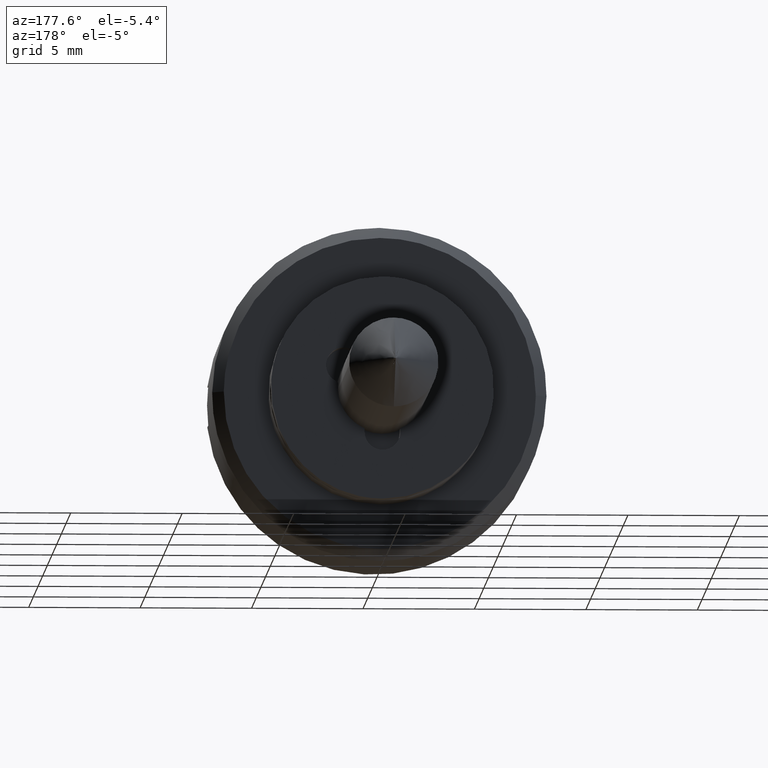
[diagram: clean part render]
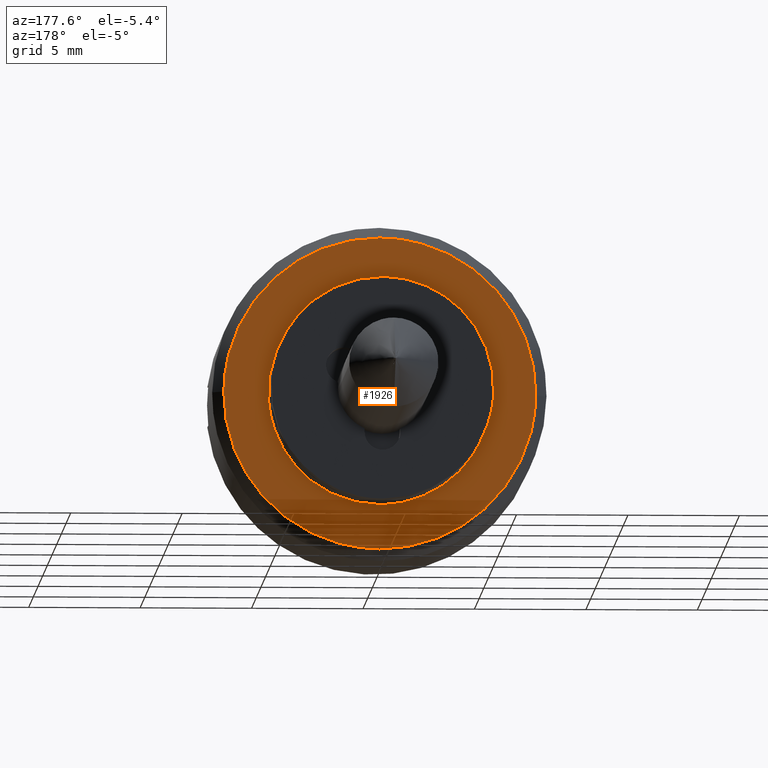
[diagram: same view with one face highlighted and labeled with its STEP entity id]
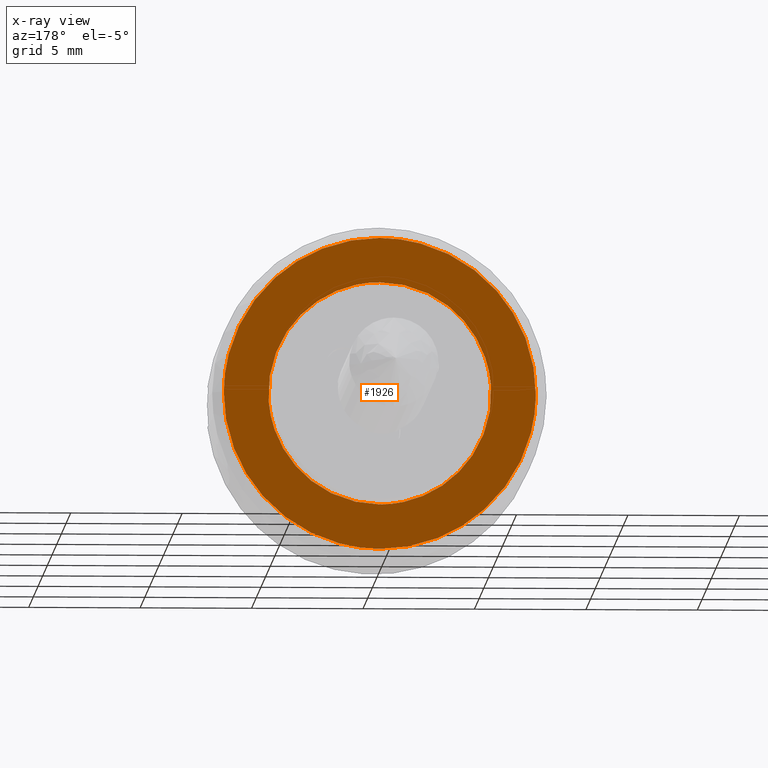
[diagram: x-ray of the same camera — body ghosted, the highlighted face saturated]
A machine part, auxiliary view. The second image highlights one B-rep face of the part: STEP entity #1926.
The next image is the same camera in x-ray: the body ghosted, the highlighted face saturated — about 0% of this face is hidden behind the body in this view.
In plain terms, the highlighted face is a freeform B-spline surface patch.
Its self-contained STEP definition (entity closure, byte-faithful):
#1058=CARTESIAN_POINT('',(-2.000000000003316,-6.999733461452301,0.061085748513027));
#1059=VERTEX_POINT('',#1058);
#1065=CARTESIAN_POINT('',(-2.0,0.0,7.0));
#1066=VERTEX_POINT('',#1065);
#1067=CARTESIAN_POINT('',(-2.0,0.0,7.0));
#1068=CARTESIAN_POINT('',(-2.000000000000000,-6.939178474116506,6.999999999999999));
#1069=CARTESIAN_POINT('',(-2.000000000003316,-6.999733461452301,0.061085748513027));
#1077=(BOUNDED_CURVE()B_SPLINE_CURVE(2,(#1067,#1068,#1069),.UNSPECIFIED.,.F.,.U.)B_SPLINE_CURVE_WITH_KNOTS((3,3),(0.500000000000000,0.748460105663786),.UNSPECIFIED.)CURVE()GEOMETRIC_REPRESENTATION_ITEM()RATIONAL_B_SPLINE_CURVE((1.0,0.708910879621613,0.996414028097566))REPRESENTATION_ITEM(''));
#1078=EDGE_CURVE('',#1066,#1059,#1077,.T.);
#1080=CARTESIAN_POINT('',(-2.000000000003316,6.999733461452301,-0.061085748513027));
#1081=VERTEX_POINT('',#1080);
#1082=CARTESIAN_POINT('',(-2.000000000003316,6.999733461452301,-0.061085748513027));
#1083=CARTESIAN_POINT('',(-2.0,7.0,-0.030543455769293));
#1084=CARTESIAN_POINT('',(-2.0,7.0,0.0));
#1085=CARTESIAN_POINT('',(-2.0,6.999999999999999,6.999999999999999));
#1086=CARTESIAN_POINT('',(-2.0,0.0,7.0));
#1094=(BOUNDED_CURVE()B_SPLINE_CURVE(2,(#1082,#1083,#1084,#1085,#1086),.UNSPECIFIED.,.F.,.U.)B_SPLINE_CURVE_WITH_KNOTS((3,2,3),(0.248460105663786,0.250000000000000,0.500000000000000),.UNSPECIFIED.)CURVE()GEOMETRIC_REPRESENTATION_ITEM()RATIONAL_B_SPLINE_CURVE((0.996414028097566,0.998195901564935,1.0,0.707106781186547,1.0))REPRESENTATION_ITEM(''));
#1095=EDGE_CURVE('',#1081,#1066,#1094,.T.);
#1201=CARTESIAN_POINT('',(-2.0,0.0,-7.0));
#1202=VERTEX_POINT('',#1201);
#1203=CARTESIAN_POINT('',(-2.0,0.0,-7.0));
#1204=CARTESIAN_POINT('',(-2.000000000000000,6.939178474116506,-6.999999999999999));
#1205=CARTESIAN_POINT('',(-2.000000000003316,6.999733461452301,-0.061085748513027));
#1213=(BOUNDED_CURVE()B_SPLINE_CURVE(2,(#1203,#1204,#1205),.UNSPECIFIED.,.F.,.U.)B_SPLINE_CURVE_WITH_KNOTS((3,3),(0.0,0.248460105663786),.UNSPECIFIED.)CURVE()GEOMETRIC_REPRESENTATION_ITEM()RATIONAL_B_SPLINE_CURVE((1.0,0.708910879621613,0.996414028097566))REPRESENTATION_ITEM(''));
#1214=EDGE_CURVE('',#1202,#1081,#1213,.T.);
#1216=CARTESIAN_POINT('',(-2.000000000003316,-6.999733461452301,0.061085748513027));
#1217=CARTESIAN_POINT('',(-2.0,-7.0,0.030543455769293));
#1218=CARTESIAN_POINT('',(-2.0,-7.0,0.0));
#1219=CARTESIAN_POINT('',(-2.0,-6.999999999999999,-6.999999999999999));
#1220=CARTESIAN_POINT('',(-2.0,0.0,-7.0));
#1228=(BOUNDED_CURVE()B_SPLINE_CURVE(2,(#1216,#1217,#1218,#1219,#1220),.UNSPECIFIED.,.F.,.U.)B_SPLINE_CURVE_WITH_KNOTS((3,2,3),(0.748460105663786,0.750000000000000,1.0),.UNSPECIFIED.)CURVE()GEOMETRIC_REPRESENTATION_ITEM()RATIONAL_B_SPLINE_CURVE((0.996414028097566,0.998195901564935,1.0,0.707106781186547,1.0))REPRESENTATION_ITEM(''));
#1229=EDGE_CURVE('',#1059,#1202,#1228,.T.);
#1469=CARTESIAN_POINT('',(-2.0,0.0,-5.0));
#1470=VERTEX_POINT('',#1469);
#1471=CARTESIAN_POINT('',(-2.000000000000050,-4.984586927430787,-0.392292190688549));
#1472=VERTEX_POINT('',#1471);
#1473=CARTESIAN_POINT('',(-2.0,0.0,-5.0));
#1474=CARTESIAN_POINT('',(-2.000000000000000,-4.621955516467760,-5.0));
#1475=CARTESIAN_POINT('',(-2.000000000000050,-4.984586927430787,-0.392292190688549));
#1483=(BOUNDED_CURVE()B_SPLINE_CURVE(2,(#1473,#1474,#1475),.UNSPECIFIED.,.F.,.U.)B_SPLINE_CURVE_WITH_KNOTS((3,3),(0.0,0.236331413708403),.UNSPECIFIED.)CURVE()GEOMETRIC_REPRESENTATION_ITEM()RATIONAL_B_SPLINE_CURVE((1.0,0.723120526128849,0.969723592152161))REPRESENTATION_ITEM(''));
#1484=EDGE_CURVE('',#1470,#1472,#1483,.T.);
#1486=CARTESIAN_POINT('',(-2.000000000000050,4.984586927430787,0.392292190688549));
#1487=VERTEX_POINT('',#1486);
#1488=CARTESIAN_POINT('',(-2.000000000000050,4.984586927430787,0.392292190688549));
#1489=CARTESIAN_POINT('',(-2.000000000000000,5.000000000000001,0.196448883433947));
#1490=CARTESIAN_POINT('',(-2.0,5.0,0.0));
#1491=CARTESIAN_POINT('',(-2.000000000000000,5.000000000000001,-5.000000000000001));
#1492=CARTESIAN_POINT('',(-2.0,0.0,-5.0));
#1500=(BOUNDED_CURVE()B_SPLINE_CURVE(2,(#1488,#1489,#1490,#1491,#1492),.UNSPECIFIED.,.F.,.U.)B_SPLINE_CURVE_WITH_KNOTS((3,2,3),(0.736331413708403,0.750000000000000,1.0),.UNSPECIFIED.)CURVE()GEOMETRIC_REPRESENTATION_ITEM()RATIONAL_B_SPLINE_CURVE((0.969723592152161,0.983986255057699,1.0,0.707106781186548,1.0))REPRESENTATION_ITEM(''));
#1501=EDGE_CURVE('',#1487,#1470,#1500,.T.);
#1537=CARTESIAN_POINT('',(-2.0,0.0,5.0));
#1538=VERTEX_POINT('',#1537);
#1539=CARTESIAN_POINT('',(-2.000000000000050,-4.984586927430787,-0.392292190688549));
#1540=CARTESIAN_POINT('',(-2.000000000000000,-4.999999999999999,-0.196448883433947));
#1541=CARTESIAN_POINT('',(-2.0,-5.0,0.0));
#1542=CARTESIAN_POINT('',(-2.000000000000000,-5.000000000000001,5.000000000000001));
#1543=CARTESIAN_POINT('',(-2.0,0.0,5.0));
#1551=(BOUNDED_CURVE()B_SPLINE_CURVE(2,(#1539,#1540,#1541,#1542,#1543),.UNSPECIFIED.,.F.,.U.)B_SPLINE_CURVE_WITH_KNOTS((3,2,3),(0.236331413708403,0.250000000000000,0.500000000000000),.UNSPECIFIED.)CURVE()GEOMETRIC_REPRESENTATION_ITEM()RATIONAL_B_SPLINE_CURVE((0.969723592152161,0.983986255057699,1.0,0.707106781186548,1.0))REPRESENTATION_ITEM(''));
#1552=EDGE_CURVE('',#1472,#1538,#1551,.T.);
#1559=CARTESIAN_POINT('',(-2.0,0.0,5.0));
#1560=CARTESIAN_POINT('',(-2.000000000000000,4.621955516467760,5.0));
#1561=CARTESIAN_POINT('',(-2.000000000000050,4.984586927430787,0.392292190688549));
#1569=(BOUNDED_CURVE()B_SPLINE_CURVE(2,(#1559,#1560,#1561),.UNSPECIFIED.,.F.,.U.)B_SPLINE_CURVE_WITH_KNOTS((3,3),(0.500000000000000,0.736331413708403),.UNSPECIFIED.)CURVE()GEOMETRIC_REPRESENTATION_ITEM()RATIONAL_B_SPLINE_CURVE((1.0,0.723120526128849,0.969723592152161))REPRESENTATION_ITEM(''));
#1570=EDGE_CURVE('',#1538,#1487,#1569,.T.);
#1909=CARTESIAN_POINT('',(-2.0,-7.699006820701341,-7.699299972865284));
#1910=CARTESIAN_POINT('',(-2.0,7.699006320022326,-7.699299972865284));
#1911=CARTESIAN_POINT('',(-2.0,-7.699006820701341,7.699300348374545));
#1912=CARTESIAN_POINT('',(-2.0,7.699006320022326,7.699300348374545));
#1913=B_SPLINE_SURFACE_WITH_KNOTS('',1,1,((#1909,#1911),(#1910,#1912)),.UNSPECIFIED.,.F.,.F.,.U.,(2,2),(2,2),(0.0,15.398013140723670),(0.0,15.398600321239829),.UNSPECIFIED.);
#1914=ORIENTED_EDGE('',*,*,#1214,.T.);
#1915=ORIENTED_EDGE('',*,*,#1095,.T.);
#1916=ORIENTED_EDGE('',*,*,#1078,.T.);
#1917=ORIENTED_EDGE('',*,*,#1229,.T.);
#1918=EDGE_LOOP('',(#1914,#1915,#1916,#1917));
#1919=FACE_OUTER_BOUND('',#1918,.T.);
#1920=ORIENTED_EDGE('',*,*,#1570,.T.);
#1921=ORIENTED_EDGE('',*,*,#1501,.T.);
#1922=ORIENTED_EDGE('',*,*,#1484,.T.);
#1923=ORIENTED_EDGE('',*,*,#1552,.T.);
#1924=EDGE_LOOP('',(#1920,#1921,#1922,#1923));
#1925=FACE_BOUND('',#1924,.T.);
#1926=ADVANCED_FACE('',(#1919,#1925),#1913,.T.);